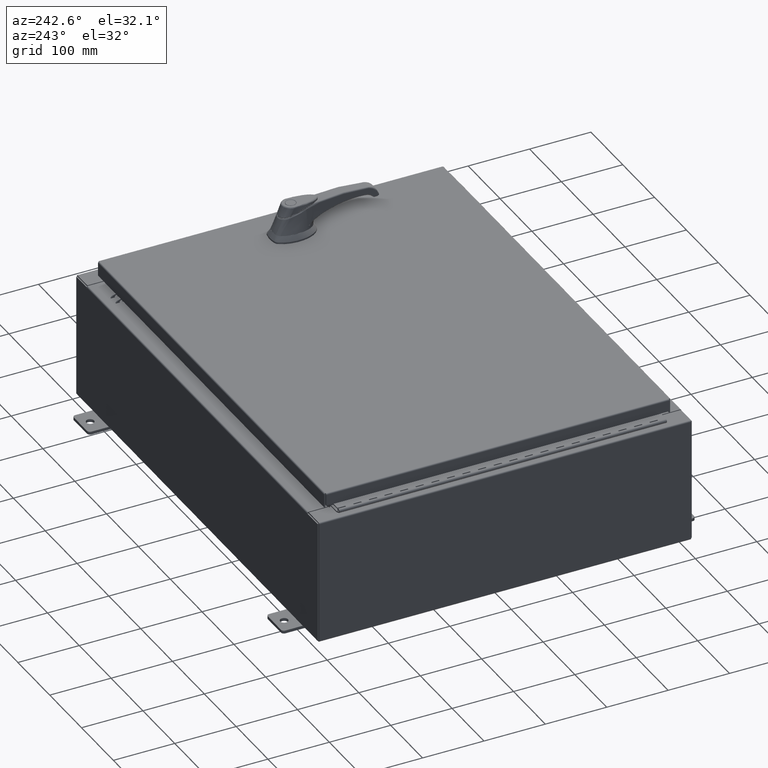
[diagram: clean part render]
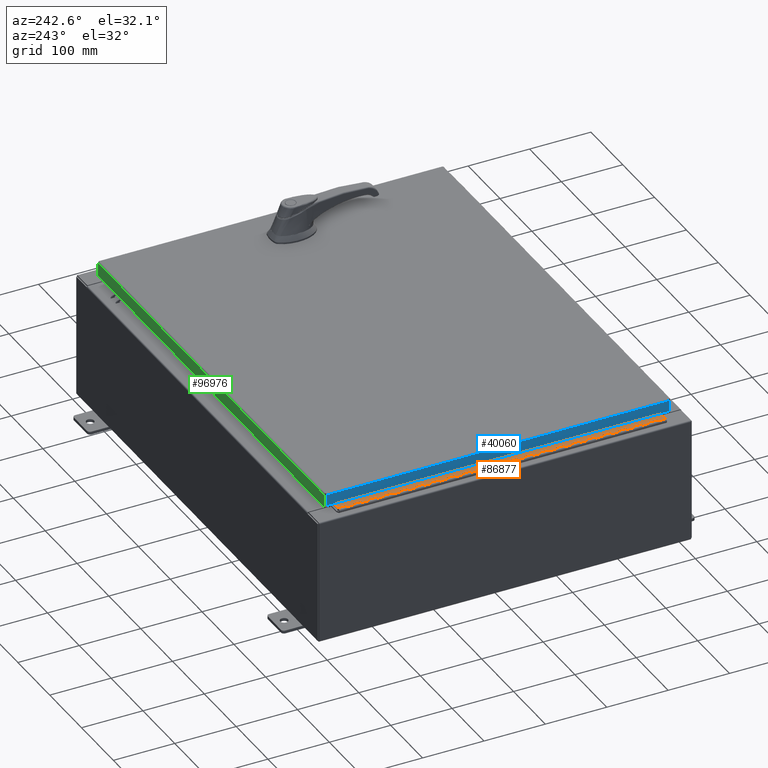
[diagram: same view with three faces highlighted in distinct colors, each labeled with its STEP entity id]
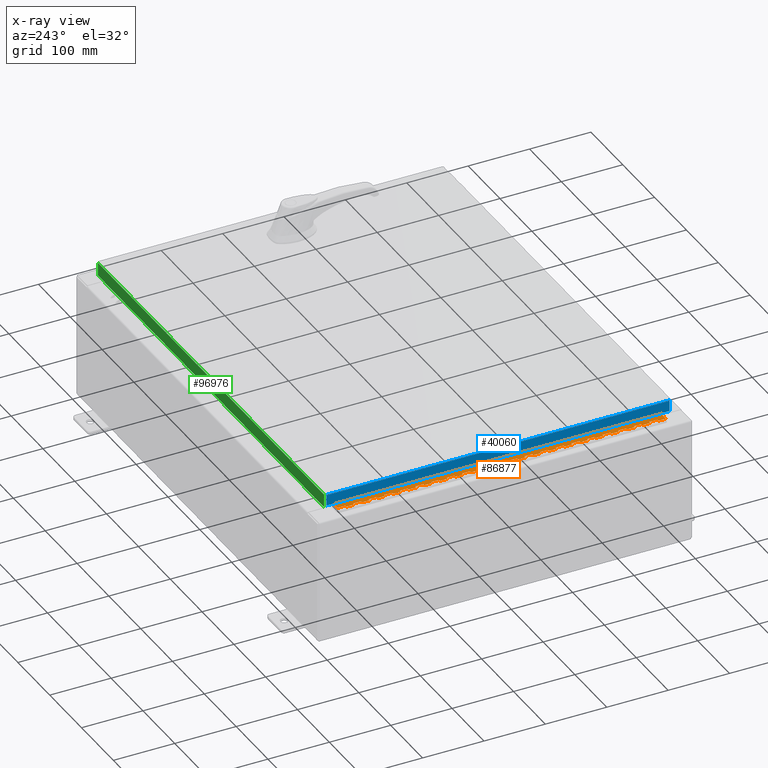
[diagram: x-ray of the same camera — body ghosted, the three highlighted faces saturated]
A machine part, auxiliary view with three faces highlighted in distinct colors.
The next image is the same camera in x-ray (body ghosted, the three faces saturated) — at least one of them is partly hidden behind the body in this view.
Their STEP definitions:

[orange] entity #86877 — the highlighted planar face has unit normal (-0, -0, 1).
#153 = VERTEX_POINT ( 'NONE', #78457 ) ;
#266 = VECTOR ( 'NONE', #71248, 39.37007874015748100 ) ;
#368 = VECTOR ( 'NONE', #106953, 39.37007874015748100 ) ;
#970 = CARTESIAN_POINT ( 'NONE',  ( -0.6869999999999982800, 0.5504999999999997700, -14.00000000000000000 ) ) ;
#1502 = VECTOR ( 'NONE', #34644, 39.37007874015748100 ) ;
#1560 = LINE ( 'NONE', #68880, #93807 ) ;
#1813 = EDGE_CURVE ( 'NONE', #80933, #80833, #9732, .T. ) ;
#2033 = VECTOR ( 'NONE', #4743, 39.37007874015748100 ) ;
#2072 = VECTOR ( 'NONE', #92872, 39.37007874015748100 ) ;
#2214 = VECTOR ( 'NONE', #51764, 39.37007874015748100 ) ;
#2448 = CARTESIAN_POINT ( 'NONE',  ( -0.6869999999999973900, 0.8004999999999995500, -8.500000000000000000 ) ) ;
#2631 = EDGE_CURVE ( 'NONE', #101813, #64301, #12202, .T. ) ;
#2693 = VERTEX_POINT ( 'NONE', #41476 ) ;
#2902 = DIRECTION ( 'NONE',  ( 3.369016658928398200E-015, 1.000000000000000000, 0.0000000000000000000 ) ) ;
#3046 = CARTESIAN_POINT ( 'NONE',  ( -0.6869999999999982800, 0.5504999999999997700, -19.00000000000000000 ) ) ;
#3056 = CARTESIAN_POINT ( 'NONE',  ( -0.6869999999999982800, 0.5504999999999997700, -4.500000000000000000 ) ) ;
#3602 = EDGE_CURVE ( 'NONE', #79508, #64301, #64919, .T. ) ;
#3739 = VERTEX_POINT ( 'NONE', #93168 ) ;
#3908 = DIRECTION ( 'NONE',  ( 3.389037039080723100E-015, 1.000000000000000000, -0.0000000000000000000 ) ) ;
#4082 = DIRECTION ( 'NONE',  ( -3.389037039080723100E-015, -1.000000000000000000, 0.0000000000000000000 ) ) ;
#4161 = VERTEX_POINT ( 'NONE', #101915 ) ;
#4177 = DIRECTION ( 'NONE',  ( -3.389037039080723100E-015, -1.000000000000000000, 0.0000000000000000000 ) ) ;
#4743 = DIRECTION ( 'NONE',  ( -3.389037039080723100E-015, -1.000000000000000000, 0.0000000000000000000 ) ) ;
#4808 = CARTESIAN_POINT ( 'NONE',  ( -0.6869999999999978300, 0.6754999999999996600, -6.499999999999999100 ) ) ;
#5276 = CARTESIAN_POINT ( 'NONE',  ( -0.6869999999999978300, 0.6754999999999996600, -7.499999999999999100 ) ) ;
#5305 = EDGE_CURVE ( 'NONE', #40744, #75524, #95917, .T. ) ;
#5393 = LINE ( 'NONE', #87129, #94876 ) ;
#5760 = LINE ( 'NONE', #79740, #49123 ) ;
#5987 = FACE_OUTER_BOUND ( 'NONE', #46040, .T. ) ;
#6041 = ORIENTED_EDGE ( 'NONE', *, *, #66712, .F. ) ;
#6342 = CARTESIAN_POINT ( 'NONE',  ( -0.6869999999999973900, 0.8004999999999995500, -7.499999999999999100 ) ) ;
#6546 = CARTESIAN_POINT ( 'NONE',  ( -0.6869999999999982800, 0.5504999999999997700, -6.499999999999999100 ) ) ;
#6639 = VECTOR ( 'NONE', #54943, 39.37007874015748100 ) ;
#6646 = EDGE_CURVE ( 'NONE', #67359, #56800, #18517, .T. ) ;
#6940 = EDGE_CURVE ( 'NONE', #104717, #14730, #25319, .T. ) ;
#7537 = AXIS2_PLACEMENT_3D ( 'NONE', #92044, #23112, #83703 ) ;
#7545 = VECTOR ( 'NONE', #56746, 39.37007874015748100 ) ;
#7666 = ORIENTED_EDGE ( 'NONE', *, *, #53913, .T. ) ;
#7761 = VERTEX_POINT ( 'NONE', #77459 ) ;
#8170 = LINE ( 'NONE', #112073, #97639 ) ;
#8277 = LINE ( 'NONE', #104812, #71984 ) ;
#9075 = VERTEX_POINT ( 'NONE', #9962 ) ;
#9100 = VECTOR ( 'NONE', #38766, 39.37007874015748100 ) ;
#9205 = VECTOR ( 'NONE', #52045, 39.37007874015748100 ) ;
#9474 = CARTESIAN_POINT ( 'NONE',  ( -0.6869999999999978300, 0.6754999999999996600, -19.00000000000000000 ) ) ;
#9479 = VECTOR ( 'NONE', #79998, 39.37007874015748100 ) ;
#9534 = CARTESIAN_POINT ( 'NONE',  ( -0.6869999999999973900, 0.8004999999999995500, -16.50000000000000000 ) ) ;
#9732 = LINE ( 'NONE', #39556, #35500 ) ;
#9962 = CARTESIAN_POINT ( 'NONE',  ( -0.6869999999999978300, 0.6754999999999996600, 0.0000000000000000000 ) ) ;
#10067 = VERTEX_POINT ( 'NONE', #15588 ) ;
#10081 = CARTESIAN_POINT ( 'NONE',  ( -0.6869999999999978300, 0.6754999999999996600, -8.000000000000000000 ) ) ;
#10213 = CARTESIAN_POINT ( 'NONE',  ( -0.6869999999999973900, 0.8004999999999995500, -5.000000000000000000 ) ) ;
#10244 = EDGE_CURVE ( 'NONE', #7761, #94252, #66937, .T. ) ;
#10457 = ORIENTED_EDGE ( 'NONE', *, *, #33374, .F. ) ;
#10596 = DIRECTION ( 'NONE',  ( 3.389037039080723100E-015, 1.000000000000000000, -0.0000000000000000000 ) ) ;
#11397 = CARTESIAN_POINT ( 'NONE',  ( -0.6869999999999982800, 0.5504999999999997700, -9.000000000000000000 ) ) ;
#11663 = ORIENTED_EDGE ( 'NONE', *, *, #61727, .F. ) ;
#11923 = LINE ( 'NONE', #111552, #9205 ) ;
#12202 = LINE ( 'NONE', #27387, #9479 ) ;
#12247 = ORIENTED_EDGE ( 'NONE', *, *, #98075, .T. ) ;
#12464 = ORIENTED_EDGE ( 'NONE', *, *, #97260, .F. ) ;
#12489 = DIRECTION ( 'NONE',  ( 0.0000000000000000000, 0.0000000000000000000, 1.000000000000000000 ) ) ;
#12494 = CARTESIAN_POINT ( 'NONE',  ( -0.6869999999999978300, 0.6754999999999996600, -1.000000000000000000 ) ) ;
#12510 = LINE ( 'NONE', #79919, #32897 ) ;
#12549 = DIRECTION ( 'NONE',  ( 0.0000000000000000000, -0.0000000000000000000, -1.000000000000000000 ) ) ;
#12822 = CARTESIAN_POINT ( 'NONE',  ( -0.6869999999999982800, 0.5504999999999997700, -13.50000000000000000 ) ) ;
#12842 = ORIENTED_EDGE ( 'NONE', *, *, #88620, .F. ) ;
#12953 = LINE ( 'NONE', #53607, #41430 ) ;
#13039 = CARTESIAN_POINT ( 'NONE',  ( -0.6869999999999982800, 0.5504999999999997700, -9.500000000000000000 ) ) ;
#13220 = VERTEX_POINT ( 'NONE', #67826 ) ;
#13924 = CARTESIAN_POINT ( 'NONE',  ( -0.6869999999999982800, 0.5504999999999997700, -4.000000000000000000 ) ) ;
#14231 = LINE ( 'NONE', #6342, #77953 ) ;
#14513 = ORIENTED_EDGE ( 'NONE', *, *, #51551, .F. ) ;
#14623 = EDGE_CURVE ( 'NONE', #10067, #72580, #93722, .T. ) ;
#14730 = VERTEX_POINT ( 'NONE', #111822 ) ;
#14781 = CARTESIAN_POINT ( 'NONE',  ( -0.6869999999999973900, 0.8004999999999995500, -0.5000000000000000000 ) ) ;
#15057 = DIRECTION ( 'NONE',  ( -3.389037039080723100E-015, -1.000000000000000000, 0.0000000000000000000 ) ) ;
#15122 = EDGE_CURVE ( 'NONE', #88867, #3739, #28604, .T. ) ;
#15264 = EDGE_CURVE ( 'NONE', #70760, #79508, #66517, .T. ) ;
#15310 = ORIENTED_EDGE ( 'NONE', *, *, #40482, .F. ) ;
#15346 = VECTOR ( 'NONE', #65526, 39.37007874015748100 ) ;
#15505 = CARTESIAN_POINT ( 'NONE',  ( -0.6869999999999982800, 0.5504999999999997700, -5.500000000000000000 ) ) ;
#15588 = CARTESIAN_POINT ( 'NONE',  ( -0.6869999999999978300, 0.6754999999999996600, -1.499999999999999800 ) ) ;
#15776 = LINE ( 'NONE', #34149, #82179 ) ;
#15792 = ORIENTED_EDGE ( 'NONE', *, *, #61919, .F. ) ;
#15832 = VECTOR ( 'NONE', #81776, 39.37007874015748100 ) ;
#15843 = CARTESIAN_POINT ( 'NONE',  ( -0.6869999999999978300, 0.6754999999999996600, -21.00000000000000000 ) ) ;
#15963 = ORIENTED_EDGE ( 'NONE', *, *, #5305, .F. ) ;
#16587 = EDGE_CURVE ( 'NONE', #37537, #34533, #8277, .T. ) ;
#16972 = DIRECTION ( 'NONE',  ( 0.0000000000000000000, 0.0000000000000000000, 1.000000000000000000 ) ) ;
#16974 = DIRECTION ( 'NONE',  ( 0.0000000000000000000, 0.0000000000000000000, 1.000000000000000000 ) ) ;
#17052 = VECTOR ( 'NONE', #58279, 39.37007874015748100 ) ;
#17108 = CARTESIAN_POINT ( 'NONE',  ( -0.6869999999999982800, 0.5504999999999997700, -10.00000000000000000 ) ) ;
#17254 = VERTEX_POINT ( 'NONE', #3056 ) ;
#17446 = ORIENTED_EDGE ( 'NONE', *, *, #21738, .T. ) ;
#17540 = CARTESIAN_POINT ( 'NONE',  ( -0.6869999999999978300, 0.6754999999999996600, -18.50000000000000000 ) ) ;
#17580 = VECTOR ( 'NONE', #93557, 39.37007874015748100 ) ;
#17597 = EDGE_CURVE ( 'NONE', #91715, #111342, #8170, .T. ) ;
#17794 = LINE ( 'NONE', #75964, #84251 ) ;
#17869 = VERTEX_POINT ( 'NONE', #99149 ) ;
#18050 = LINE ( 'NONE', #56798, #15346 ) ;
#18068 = VECTOR ( 'NONE', #28379, 39.37007874015748100 ) ;
#18169 = VECTOR ( 'NONE', #86818, 39.37007874015748100 ) ;
#18268 = ORIENTED_EDGE ( 'NONE', *, *, #6646, .F. ) ;
#18384 = DIRECTION ( 'NONE',  ( 0.0000000000000000000, 0.0000000000000000000, 1.000000000000000000 ) ) ;
#18393 = EDGE_CURVE ( 'NONE', #46862, #59871, #105681, .T. ) ;
#18396 = EDGE_CURVE ( 'NONE', #76349, #13220, #79926, .T. ) ;
#18517 = LINE ( 'NONE', #46902, #15832 ) ;
#18568 = ORIENTED_EDGE ( 'NONE', *, *, #1813, .F. ) ;
#18585 = CARTESIAN_POINT ( 'NONE',  ( -0.6869999999999973900, 0.8004999999999995500, -9.000000000000000000 ) ) ;
#18684 = VECTOR ( 'NONE', #41155, 39.37007874015748100 ) ;
#19516 = VECTOR ( 'NONE', #95066, 39.37007874015748100 ) ;
#19843 = ORIENTED_EDGE ( 'NONE', *, *, #69047, .F. ) ;
#20110 = VECTOR ( 'NONE', #18384, 39.37007874015748100 ) ;
#20422 = VECTOR ( 'NONE', #30063, 39.37007874015748100 ) ;
#20583 = LINE ( 'NONE', #45178, #63917 ) ;
#20964 = VECTOR ( 'NONE', #79789, 39.37007874015748100 ) ;
#21031 = LINE ( 'NONE', #21176, #41323 ) ;
#21104 = DIRECTION ( 'NONE',  ( 0.0000000000000000000, -0.0000000000000000000, -1.000000000000000000 ) ) ;
#21176 = CARTESIAN_POINT ( 'NONE',  ( -0.6869999999999973900, 0.8004999999999995500, -19.50000000000000000 ) ) ;
#21200 = CARTESIAN_POINT ( 'NONE',  ( -0.6869999999999982800, 0.5504999999999997700, -12.99999999999999800 ) ) ;
#21249 = CARTESIAN_POINT ( 'NONE',  ( -0.6869999999999978300, 0.6754999999999996600, -21.00000000000000000 ) ) ;
#21349 = DIRECTION ( 'NONE',  ( 0.0000000000000000000, 0.0000000000000000000, 1.000000000000000000 ) ) ;
#21409 = LINE ( 'NONE', #15843, #62018 ) ;
#21533 = LINE ( 'NONE', #89279, #67624 ) ;
#21738 = EDGE_CURVE ( 'NONE', #37537, #71386, #26687, .T. ) ;
#21829 = CARTESIAN_POINT ( 'NONE',  ( -0.6869999999999982800, 0.5504999999999997700, -6.000000000000000900 ) ) ;
#21929 = VECTOR ( 'NONE', #16972, 39.37007874015748100 ) ;
#21936 = CARTESIAN_POINT ( 'NONE',  ( -0.6869999999999978300, 0.6754999999999996600, -21.00000000000000000 ) ) ;
#22222 = LINE ( 'NONE', #100789, #42501 ) ;
#22239 = EDGE_CURVE ( 'NONE', #34533, #89076, #60465, .T. ) ;
#22254 = LINE ( 'NONE', #76820, #19516 ) ;
#22283 = CARTESIAN_POINT ( 'NONE',  ( -0.6869999999999982800, 0.5504999999999997700, -1.000000000000000000 ) ) ;
#22497 = CARTESIAN_POINT ( 'NONE',  ( -0.6869999999999982800, 0.5504999999999997700, -17.50000000000000000 ) ) ;
#22576 = DIRECTION ( 'NONE',  ( 0.0000000000000000000, 0.0000000000000000000, 1.000000000000000000 ) ) ;
#23012 = CARTESIAN_POINT ( 'NONE',  ( -0.6869999999999978300, 0.6754999999999996600, -11.50000000000000000 ) ) ;
#23112 = DIRECTION ( 'NONE',  ( 1.000000000000000000, -3.369016658928398200E-015, 0.0000000000000000000 ) ) ;
#23192 = VERTEX_POINT ( 'NONE', #39453 ) ;
#23591 = ORIENTED_EDGE ( 'NONE', *, *, #27555, .F. ) ;
#23852 = ORIENTED_EDGE ( 'NONE', *, *, #110169, .F. ) ;
#24109 = EDGE_CURVE ( 'NONE', #34640, #94252, #53619, .T. ) ;
#24228 = CARTESIAN_POINT ( 'NONE',  ( -0.6869999999999978300, 0.6754999999999996600, -21.00000000000000000 ) ) ;
#24349 = LINE ( 'NONE', #14781, #88008 ) ;
#24463 = VECTOR ( 'NONE', #12489, 39.37007874015748100 ) ;
#24498 = VECTOR ( 'NONE', #81193, 39.37007874015748100 ) ;
#24584 = VECTOR ( 'NONE', #109974, 39.37007874015748100 ) ;
#24602 = VERTEX_POINT ( 'NONE', #52848 ) ;
#24608 = LINE ( 'NONE', #51668, #1502 ) ;
#24963 = LINE ( 'NONE', #101168, #108930 ) ;
#25068 = LINE ( 'NONE', #84784, #91452 ) ;
#25145 = LINE ( 'NONE', #108531, #2033 ) ;
#25168 = ORIENTED_EDGE ( 'NONE', *, *, #45577, .F. ) ;
#25319 = LINE ( 'NONE', #103708, #2214 ) ;
#26067 = EDGE_CURVE ( 'NONE', #52509, #110070, #22254, .T. ) ;
#26231 = CARTESIAN_POINT ( 'NONE',  ( -0.6869999999999973900, 0.8004999999999995500, -14.49999999999999800 ) ) ;
#26413 = ORIENTED_EDGE ( 'NONE', *, *, #70543, .T. ) ;
#26433 = CARTESIAN_POINT ( 'NONE',  ( -0.6869999999999978300, 0.6754999999999996600, -21.00000000000000000 ) ) ;
#26519 = ORIENTED_EDGE ( 'NONE', *, *, #15122, .F. ) ;
#26521 = CARTESIAN_POINT ( 'NONE',  ( -0.6869999999999998300, 0.07549999999999991400, 0.0000000000000000000 ) ) ;
#26687 = LINE ( 'NONE', #109391, #64576 ) ;
#26752 = LINE ( 'NONE', #77965, #110756 ) ;
#27009 = DIRECTION ( 'NONE',  ( -3.389037039080723100E-015, -1.000000000000000000, 0.0000000000000000000 ) ) ;
#27098 = EDGE_CURVE ( 'NONE', #23192, #94740, #60068, .T. ) ;
#27197 = LINE ( 'NONE', #72487, #24498 ) ;
#27320 = CARTESIAN_POINT ( 'NONE',  ( -0.6869999999999978300, 0.6754999999999996600, -10.00000000000000000 ) ) ;
#27328 = DIRECTION ( 'NONE',  ( 3.389037039080723100E-015, 1.000000000000000000, -0.0000000000000000000 ) ) ;
#27387 = CARTESIAN_POINT ( 'NONE',  ( -0.6870000000000022800, -0.6245000000000003900, -21.00000000000000000 ) ) ;
#27497 = ORIENTED_EDGE ( 'NONE', *, *, #95279, .F. ) ;
#27555 = EDGE_CURVE ( 'NONE', #13220, #104569, #66827, .T. ) ;
#27821 = ORIENTED_EDGE ( 'NONE', *, *, #31397, .F. ) ;
#28258 = EDGE_CURVE ( 'NONE', #86813, #73755, #47427, .T. ) ;
#28379 = DIRECTION ( 'NONE',  ( 0.0000000000000000000, -0.0000000000000000000, -1.000000000000000000 ) ) ;
#28414 = VECTOR ( 'NONE', #58444, 39.37007874015748100 ) ;
#28604 = LINE ( 'NONE', #89501, #48867 ) ;
#29225 = ORIENTED_EDGE ( 'NONE', *, *, #32074, .F. ) ;
#29267 = ORIENTED_EDGE ( 'NONE', *, *, #94759, .F. ) ;
#29463 = VERTEX_POINT ( 'NONE', #10081 ) ;
#29591 = LINE ( 'NONE', #55962, #49877 ) ;
#29702 = LINE ( 'NONE', #89443, #6639 ) ;
#29867 = DIRECTION ( 'NONE',  ( 0.0000000000000000000, -0.0000000000000000000, -1.000000000000000000 ) ) ;
#29874 = CARTESIAN_POINT ( 'NONE',  ( -0.6869999999999982800, 0.5504999999999997700, -21.00000000000000000 ) ) ;
#29989 = VECTOR ( 'NONE', #104161, 39.37007874015748100 ) ;
#30063 = DIRECTION ( 'NONE',  ( -3.389037039080723100E-015, -1.000000000000000000, 0.0000000000000000000 ) ) ;
#30534 = LINE ( 'NONE', #105298, #73906 ) ;
#30733 = VERTEX_POINT ( 'NONE', #37793 ) ;
#31008 = VECTOR ( 'NONE', #53697, 39.37007874015748100 ) ;
#31116 = LINE ( 'NONE', #6546, #28414 ) ;
#31160 = VERTEX_POINT ( 'NONE', #15505 ) ;
#31397 = EDGE_CURVE ( 'NONE', #102824, #82140, #21533, .T. ) ;
#32074 = EDGE_CURVE ( 'NONE', #76294, #62567, #11923, .T. ) ;
#32241 = CARTESIAN_POINT ( 'NONE',  ( -0.6869999999999973900, 0.8004999999999995500, -12.49999999999999800 ) ) ;
#32460 = CARTESIAN_POINT ( 'NONE',  ( -0.6869999999999982800, 0.5504999999999997700, -20.00000000000000000 ) ) ;
#32467 = VERTEX_POINT ( 'NONE', #66016 ) ;
#32878 = DIRECTION ( 'NONE',  ( 0.0000000000000000000, 0.0000000000000000000, 1.000000000000000000 ) ) ;
#32897 = VECTOR ( 'NONE', #80274, 39.37007874015748100 ) ;
#33332 = VERTEX_POINT ( 'NONE', #103368 ) ;
#33374 = EDGE_CURVE ( 'NONE', #78840, #40744, #26752, .T. ) ;
#33458 = ORIENTED_EDGE ( 'NONE', *, *, #61897, .F. ) ;
#33718 = LINE ( 'NONE', #69309, #53990 ) ;
#34149 = CARTESIAN_POINT ( 'NONE',  ( -0.6869999999999982800, 0.5504999999999997700, -8.500000000000000000 ) ) ;
#34533 = VERTEX_POINT ( 'NONE', #83513 ) ;
#34634 = ORIENTED_EDGE ( 'NONE', *, *, #6940, .F. ) ;
#34640 = VERTEX_POINT ( 'NONE', #101323 ) ;
#34644 = DIRECTION ( 'NONE',  ( -3.389037039080723100E-015, -1.000000000000000000, 0.0000000000000000000 ) ) ;
#34786 = VERTEX_POINT ( 'NONE', #17540 ) ;
#34831 = CARTESIAN_POINT ( 'NONE',  ( -0.6869999999999978300, 0.6754999999999996600, -21.00000000000000000 ) ) ;
#34870 = LINE ( 'NONE', #64913, #9100 ) ;
#34888 = CARTESIAN_POINT ( 'NONE',  ( -0.6869999999999978300, 0.6754999999999996600, -11.00000000000000000 ) ) ;
#34931 = ORIENTED_EDGE ( 'NONE', *, *, #108011, .F. ) ;
#35223 = DIRECTION ( 'NONE',  ( 0.0000000000000000000, 0.0000000000000000000, 1.000000000000000000 ) ) ;
#35404 = ORIENTED_EDGE ( 'NONE', *, *, #53575, .F. ) ;
#35500 = VECTOR ( 'NONE', #12549, 39.37007874015748100 ) ;
#35527 = ORIENTED_EDGE ( 'NONE', *, *, #104674, .T. ) ;
#35699 = DIRECTION ( 'NONE',  ( -3.389037039080723100E-015, -1.000000000000000000, 0.0000000000000000000 ) ) ;
#35866 = VERTEX_POINT ( 'NONE', #87005 ) ;
#36219 = CARTESIAN_POINT ( 'NONE',  ( -0.6869999999999982800, 0.5504999999999997700, -15.50000000000000000 ) ) ;
#36308 = CARTESIAN_POINT ( 'NONE',  ( -0.6869999999999973900, 0.8004999999999995500, -6.000000000000000900 ) ) ;
#36310 = CARTESIAN_POINT ( 'NONE',  ( -0.6869999999999973900, 0.8004999999999995500, -18.50000000000000000 ) ) ;
#36328 = LINE ( 'NONE', #69886, #102778 ) ;
#36382 = CARTESIAN_POINT ( 'NONE',  ( -0.6869999999999973900, 0.8004999999999995500, -5.500000000000000000 ) ) ;
#36775 = VERTEX_POINT ( 'NONE', #39801 ) ;
#37537 = VERTEX_POINT ( 'NONE', #23012 ) ;
#37763 = DIRECTION ( 'NONE',  ( -3.389037039080723100E-015, -1.000000000000000000, 0.0000000000000000000 ) ) ;
#37793 = CARTESIAN_POINT ( 'NONE',  ( -0.6869999999999982800, 0.5504999999999997700, -6.499999999999999100 ) ) ;
#38243 = ORIENTED_EDGE ( 'NONE', *, *, #10244, .F. ) ;
#38722 = VERTEX_POINT ( 'NONE', #81367 ) ;
#38766 = DIRECTION ( 'NONE',  ( 3.389037039080723100E-015, 1.000000000000000000, -0.0000000000000000000 ) ) ;
#38860 = VERTEX_POINT ( 'NONE', #22283 ) ;
#39321 = CARTESIAN_POINT ( 'NONE',  ( -0.6869999999999982800, 0.5504999999999997700, -17.50000000000000000 ) ) ;
#39453 = CARTESIAN_POINT ( 'NONE',  ( -0.6869999999999978300, 0.6754999999999996600, -2.500000000000000000 ) ) ;
#39468 = DIRECTION ( 'NONE',  ( 0.0000000000000000000, 0.0000000000000000000, 1.000000000000000000 ) ) ;
#39556 = CARTESIAN_POINT ( 'NONE',  ( -0.6869999999999982800, 0.5504999999999997700, -19.50000000000000000 ) ) ;
#39801 = CARTESIAN_POINT ( 'NONE',  ( -0.6869999999999978300, 0.6754999999999996600, -2.999999999999999600 ) ) ;
#40121 = EDGE_CURVE ( 'NONE', #32467, #17254, #24608, .T. ) ;
#40156 = ORIENTED_EDGE ( 'NONE', *, *, #27098, .F. ) ;
#40323 = EDGE_CURVE ( 'NONE', #17869, #76294, #82847, .T. ) ;
#40482 = EDGE_CURVE ( 'NONE', #89076, #62376, #92323, .T. ) ;
#40744 = VERTEX_POINT ( 'NONE', #3046 ) ;
#41019 = CARTESIAN_POINT ( 'NONE',  ( -0.6869999999999973900, 0.8004999999999995500, -3.500000000000000000 ) ) ;
#41021 = ORIENTED_EDGE ( 'NONE', *, *, #14623, .T. ) ;
#41155 = DIRECTION ( 'NONE',  ( 0.0000000000000000000, -0.0000000000000000000, -1.000000000000000000 ) ) ;
#41163 = ORIENTED_EDGE ( 'NONE', *, *, #44253, .T. ) ;
#41323 = VECTOR ( 'NONE', #4082, 39.37007874015748100 ) ;
#41430 = VECTOR ( 'NONE', #105531, 39.37007874015748100 ) ;
#41476 = CARTESIAN_POINT ( 'NONE',  ( -0.6869999999999982800, 0.5504999999999997700, -17.00000000000000000 ) ) ;
#41941 = DIRECTION ( 'NONE',  ( 3.389037039080723100E-015, 1.000000000000000000, -0.0000000000000000000 ) ) ;
#41986 = EDGE_CURVE ( 'NONE', #104996, #110070, #27197, .T. ) ;
#42270 = VERTEX_POINT ( 'NONE', #110329 ) ;
#42419 = VERTEX_POINT ( 'NONE', #17108 ) ;
#42501 = VECTOR ( 'NONE', #92094, 39.37007874015748100 ) ;
#42823 = DIRECTION ( 'NONE',  ( 0.0000000000000000000, -0.0000000000000000000, -1.000000000000000000 ) ) ;
#43088 = VECTOR ( 'NONE', #102257, 39.37007874015748100 ) ;
#43089 = VERTEX_POINT ( 'NONE', #92338 ) ;
#43105 = VERTEX_POINT ( 'NONE', #57824 ) ;
#43115 = LINE ( 'NONE', #82492, #109567 ) ;
#43121 = LINE ( 'NONE', #52448, #20110 ) ;
#43256 = EDGE_CURVE ( 'NONE', #30733, #38722, #31116, .T. ) ;
#43262 = EDGE_CURVE ( 'NONE', #42419, #97514, #51400, .T. ) ;
#43423 = DIRECTION ( 'NONE',  ( -3.389037039080723100E-015, -1.000000000000000000, 0.0000000000000000000 ) ) ;
#43542 = ORIENTED_EDGE ( 'NONE', *, *, #16587, .F. ) ;
#43945 = ORIENTED_EDGE ( 'NONE', *, *, #88299, .F. ) ;
#44253 = EDGE_CURVE ( 'NONE', #75563, #59871, #43121, .T. ) ;
#44284 = LINE ( 'NONE', #41019, #87712 ) ;
#44406 = VECTOR ( 'NONE', #43423, 39.37007874015748100 ) ;
#44417 = EDGE_CURVE ( 'NONE', #24602, #97618, #104135, .T. ) ;
#44911 = LINE ( 'NONE', #102617, #21929 ) ;
#44932 = ORIENTED_EDGE ( 'NONE', *, *, #58566, .T. ) ;
#45071 = LINE ( 'NONE', #36310, #111519 ) ;
#45178 = CARTESIAN_POINT ( 'NONE',  ( -0.6869999999999973900, 0.8004999999999995500, -2.999999999999999600 ) ) ;
#45181 = CARTESIAN_POINT ( 'NONE',  ( -0.6869999999999973900, 0.8004999999999995500, -10.50000000000000000 ) ) ;
#45577 = EDGE_CURVE ( 'NONE', #33332, #104717, #49786, .T. ) ;
#46040 = EDGE_LOOP ( 'NONE', ( #96865, #69304, #66057, #104077, #64669, #98488, #18568, #58158, #7666, #15963, #10457, #43945, #87364, #23591, #46102, #19843, #78216, #15792, #23852, #61824, #101446, #48190, #33458, #50139, #41163, #104191, #88389, #109731, #63097, #11663, #84853, #18268, #102415, #95864, #27821, #56358, #69266, #15310, #98653, #43542, #17446, #107757, #29225, #58933, #107610, #81941, #73693, #26519, #96946, #56965, #12464, #75531, #53233, #34931, #84668, #6041, #92606, #12842, #102203, #27497, #26413, #29267, #14513, #35404, #78119, #38243, #52407, #61465, #51981, #51776, #58835, #79031, #44932, #95416, #75238, #40156, #12247, #34634, #25168, #55013, #41021, #54591, #97787, #58734, #35527, #82446 ) ) ;
#46072 = CARTESIAN_POINT ( 'NONE',  ( -0.6870000000000022800, -0.6245000000000003900, 0.0000000000000000000 ) ) ;
#46102 = ORIENTED_EDGE ( 'NONE', *, *, #18396, .F. ) ;
#46322 = LINE ( 'NONE', #36382, #266 ) ;
#46659 = VECTOR ( 'NONE', #88122, 39.37007874015748100 ) ;
#46662 = CARTESIAN_POINT ( 'NONE',  ( -0.6869999999999973900, 0.8004999999999995500, -11.99999999999999800 ) ) ;
#46862 = VERTEX_POINT ( 'NONE', #78311 ) ;
#46902 = CARTESIAN_POINT ( 'NONE',  ( -0.6869999999999973900, 0.8004999999999995500, -13.50000000000000000 ) ) ;
#47032 = VECTOR ( 'NONE', #106927, 39.37007874015748100 ) ;
#47238 = DIRECTION ( 'NONE',  ( 0.0000000000000000000, -0.0000000000000000000, -1.000000000000000000 ) ) ;
#47352 = CARTESIAN_POINT ( 'NONE',  ( -0.6869999999999973900, 0.8004999999999995500, -2.500000000000000000 ) ) ;
#47427 = LINE ( 'NONE', #21249, #24463 ) ;
#47560 = EDGE_CURVE ( 'NONE', #101813, #111243, #105116, .T. ) ;
#47817 = CARTESIAN_POINT ( 'NONE',  ( -0.6869999999999982800, 0.5504999999999997700, -3.500000000000000000 ) ) ;
#48153 = LINE ( 'NONE', #32241, #2072 ) ;
#48190 = ORIENTED_EDGE ( 'NONE', *, *, #26067, .F. ) ;
#48424 = CARTESIAN_POINT ( 'NONE',  ( -0.6869999999999982800, 0.5504999999999997700, -20.50000000000000400 ) ) ;
#48867 = VECTOR ( 'NONE', #35699, 39.37007874015748100 ) ;
#48893 = EDGE_CURVE ( 'NONE', #34786, #104569, #12953, .T. ) ;
#48943 = VERTEX_POINT ( 'NONE', #64990 ) ;
#49020 = VECTOR ( 'NONE', #39468, 39.37007874015748100 ) ;
#49123 = VECTOR ( 'NONE', #88457, 39.37007874015748100 ) ;
#49617 = EDGE_CURVE ( 'NONE', #111727, #80933, #21031, .T. ) ;
#49786 = LINE ( 'NONE', #98237, #47032 ) ;
#49791 = DIRECTION ( 'NONE',  ( 0.0000000000000000000, -0.0000000000000000000, -1.000000000000000000 ) ) ;
#49826 = VECTOR ( 'NONE', #75136, 39.37007874015748100 ) ;
#49877 = VECTOR ( 'NONE', #47238, 39.37007874015748100 ) ;
#49938 = CARTESIAN_POINT ( 'NONE',  ( -0.6869999999999982800, 0.5504999999999997700, -18.50000000000000000 ) ) ;
#49974 = EDGE_CURVE ( 'NONE', #35866, #62376, #25068, .T. ) ;
#50139 = ORIENTED_EDGE ( 'NONE', *, *, #79184, .F. ) ;
#50333 = CARTESIAN_POINT ( 'NONE',  ( -0.6869999999999973900, 0.8004999999999995500, -8.000000000000000000 ) ) ;
#50659 = DIRECTION ( 'NONE',  ( 0.0000000000000000000, 0.0000000000000000000, 1.000000000000000000 ) ) ;
#51079 = EDGE_CURVE ( 'NONE', #83213, #43105, #22222, .T. ) ;
#51082 = EDGE_CURVE ( 'NONE', #62567, #71386, #24963, .T. ) ;
#51186 = CARTESIAN_POINT ( 'NONE',  ( -0.6869999999999982800, 0.5504999999999997700, -16.50000000000000000 ) ) ;
#51200 = VECTOR ( 'NONE', #21349, 39.37007874015748100 ) ;
#51209 = CARTESIAN_POINT ( 'NONE',  ( -0.6869999999999982800, 0.5504999999999997700, -11.99999999999999800 ) ) ;
#51400 = LINE ( 'NONE', #110719, #71758 ) ;
#51460 = VERTEX_POINT ( 'NONE', #70802 ) ;
#51551 = EDGE_CURVE ( 'NONE', #31160, #54476, #110270, .T. ) ;
#51668 = CARTESIAN_POINT ( 'NONE',  ( -0.6869999999999973900, 0.8004999999999995500, -4.500000000000000000 ) ) ;
#51754 = VERTEX_POINT ( 'NONE', #970 ) ;
#51764 = DIRECTION ( 'NONE',  ( 3.389037039080723100E-015, 1.000000000000000000, -0.0000000000000000000 ) ) ;
#51776 = ORIENTED_EDGE ( 'NONE', *, *, #110712, .F. ) ;
#51981 = ORIENTED_EDGE ( 'NONE', *, *, #75023, .T. ) ;
#52045 = DIRECTION ( 'NONE',  ( 0.0000000000000000000, -0.0000000000000000000, -1.000000000000000000 ) ) ;
#52106 = LINE ( 'NONE', #36219, #46659 ) ;
#52407 = ORIENTED_EDGE ( 'NONE', *, *, #61393, .F. ) ;
#52425 = EDGE_CURVE ( 'NONE', #88867, #102266, #12510, .T. ) ;
#52448 = CARTESIAN_POINT ( 'NONE',  ( -0.6869999999999978300, 0.6754999999999996600, -21.00000000000000000 ) ) ;
#52509 = VERTEX_POINT ( 'NONE', #97715 ) ;
#52714 = CARTESIAN_POINT ( 'NONE',  ( -0.6869999999999982800, 0.5504999999999997700, -11.00000000000000000 ) ) ;
#52848 = CARTESIAN_POINT ( 'NONE',  ( -0.6869999999999978300, 0.6754999999999996600, -8.500000000000000000 ) ) ;
#52875 = DIRECTION ( 'NONE',  ( -3.389037039080723100E-015, -1.000000000000000000, 0.0000000000000000000 ) ) ;
#53233 = ORIENTED_EDGE ( 'NONE', *, *, #78842, .T. ) ;
#53575 = EDGE_CURVE ( 'NONE', #34640, #31160, #46322, .T. ) ;
#53607 = CARTESIAN_POINT ( 'NONE',  ( -0.6869999999999978300, 0.6754999999999996600, -21.00000000000000000 ) ) ;
#53619 = LINE ( 'NONE', #21936, #7545 ) ;
#53697 = DIRECTION ( 'NONE',  ( 3.389037039080723100E-015, 1.000000000000000000, -0.0000000000000000000 ) ) ;
#53897 = DIRECTION ( 'NONE',  ( 3.389037039080723100E-015, 1.000000000000000000, -0.0000000000000000000 ) ) ;
#53904 = EDGE_CURVE ( 'NONE', #70760, #48943, #1560, .T. ) ;
#53913 = EDGE_CURVE ( 'NONE', #111727, #75524, #44911, .T. ) ;
#53990 = VECTOR ( 'NONE', #59094, 39.37007874015748100 ) ;
#54476 = VERTEX_POINT ( 'NONE', #21829 ) ;
#54591 = ORIENTED_EDGE ( 'NONE', *, *, #74855, .F. ) ;
#54780 = DIRECTION ( 'NONE',  ( 0.0000000000000000000, -0.0000000000000000000, -1.000000000000000000 ) ) ;
#54825 = VECTOR ( 'NONE', #41941, 39.37007874015748100 ) ;
#54941 = CARTESIAN_POINT ( 'NONE',  ( -0.6869999999999982800, 0.5504999999999997700, -14.49999999999999800 ) ) ;
#54943 = DIRECTION ( 'NONE',  ( 3.389037039080723100E-015, 1.000000000000000000, -0.0000000000000000000 ) ) ;
#55006 = DIRECTION ( 'NONE',  ( 3.389037039080723100E-015, 1.000000000000000000, -0.0000000000000000000 ) ) ;
#55013 = ORIENTED_EDGE ( 'NONE', *, *, #85486, .F. ) ;
#55130 = CARTESIAN_POINT ( 'NONE',  ( -0.6869999999999982800, 0.5504999999999997700, -11.50000000000000000 ) ) ;
#55392 = CARTESIAN_POINT ( 'NONE',  ( -0.6869999999999982800, 0.5504999999999997700, -2.999999999999999600 ) ) ;
#55793 = CARTESIAN_POINT ( 'NONE',  ( -0.6869999999999973900, 0.8004999999999995500, -14.99999999999999800 ) ) ;
#55962 = CARTESIAN_POINT ( 'NONE',  ( -0.6869999999999982800, 0.5504999999999997700, -14.49999999999999800 ) ) ;
#56358 = ORIENTED_EDGE ( 'NONE', *, *, #99721, .F. ) ;
#56374 = EDGE_CURVE ( 'NONE', #104996, #71266, #66384, .T. ) ;
#56559 = VERTEX_POINT ( 'NONE', #54941 ) ;
#56589 = DIRECTION ( 'NONE',  ( 0.0000000000000000000, -0.0000000000000000000, -1.000000000000000000 ) ) ;
#56710 = EDGE_CURVE ( 'NONE', #71508, #153, #24349, .T. ) ;
#56746 = DIRECTION ( 'NONE',  ( 0.0000000000000000000, 0.0000000000000000000, 1.000000000000000000 ) ) ;
#56798 = CARTESIAN_POINT ( 'NONE',  ( -0.6869999999999973900, 0.8004999999999995500, -17.50000000000000000 ) ) ;
#56800 = VERTEX_POINT ( 'NONE', #12822 ) ;
#56917 = DIRECTION ( 'NONE',  ( 0.0000000000000000000, -0.0000000000000000000, -1.000000000000000000 ) ) ;
#56965 = ORIENTED_EDGE ( 'NONE', *, *, #78462, .F. ) ;
#57004 = CARTESIAN_POINT ( 'NONE',  ( -0.6869999999999978300, 0.6754999999999996600, -21.00000000000000000 ) ) ;
#57279 = LINE ( 'NONE', #46072, #100679 ) ;
#57534 = CARTESIAN_POINT ( 'NONE',  ( -0.6869999999999978300, 0.6754999999999996600, -17.50000000000000000 ) ) ;
#57824 = CARTESIAN_POINT ( 'NONE',  ( -0.6869999999999978300, 0.6754999999999996600, -14.00000000000000000 ) ) ;
#58158 = ORIENTED_EDGE ( 'NONE', *, *, #49617, .F. ) ;
#58279 = DIRECTION ( 'NONE',  ( 0.0000000000000000000, 0.0000000000000000000, 1.000000000000000000 ) ) ;
#58444 = DIRECTION ( 'NONE',  ( 0.0000000000000000000, -0.0000000000000000000, -1.000000000000000000 ) ) ;
#58566 = EDGE_CURVE ( 'NONE', #51460, #36775, #21409, .T. ) ;
#58734 = ORIENTED_EDGE ( 'NONE', *, *, #56710, .F. ) ;
#58835 = ORIENTED_EDGE ( 'NONE', *, *, #81297, .F. ) ;
#58933 = ORIENTED_EDGE ( 'NONE', *, *, #40323, .F. ) ;
#59094 = DIRECTION ( 'NONE',  ( 3.389037039080723100E-015, 1.000000000000000000, -0.0000000000000000000 ) ) ;
#59606 = VECTOR ( 'NONE', #3908, 39.37007874015748100 ) ;
#59871 = VERTEX_POINT ( 'NONE', #61994 ) ;
#60068 = LINE ( 'NONE', #47352, #80379 ) ;
#60465 = LINE ( 'NONE', #55130, #103848 ) ;
#60475 = LINE ( 'NONE', #18585, #83535 ) ;
#60562 = LINE ( 'NONE', #26433, #83634 ) ;
#61212 = CARTESIAN_POINT ( 'NONE',  ( -0.6869999999999982800, 0.5504999999999997700, -7.499999999999999100 ) ) ;
#61393 = EDGE_CURVE ( 'NONE', #17254, #7761, #30534, .T. ) ;
#61465 = ORIENTED_EDGE ( 'NONE', *, *, #40121, .F. ) ;
#61705 = CARTESIAN_POINT ( 'NONE',  ( -0.6869999999999982800, 0.5504999999999997700, -8.000000000000000000 ) ) ;
#61727 = EDGE_CURVE ( 'NONE', #51754, #43105, #103689, .T. ) ;
#61824 = ORIENTED_EDGE ( 'NONE', *, *, #56374, .F. ) ;
#61897 = EDGE_CURVE ( 'NONE', #4161, #52509, #52106, .T. ) ;
#61919 = EDGE_CURVE ( 'NONE', #2693, #73755, #92850, .T. ) ;
#61994 = CARTESIAN_POINT ( 'NONE',  ( -0.6869999999999978300, 0.6754999999999996600, -14.99999999999999800 ) ) ;
#62018 = VECTOR ( 'NONE', #50659, 39.37007874015748100 ) ;
#62059 = CARTESIAN_POINT ( 'NONE',  ( -0.6869999999999982800, 0.5504999999999997700, -2.500000000000000000 ) ) ;
#62298 = VECTOR ( 'NONE', #83089, 39.37007874015748100 ) ;
#62376 = VERTEX_POINT ( 'NONE', #93757 ) ;
#62567 = VERTEX_POINT ( 'NONE', #52714 ) ;
#63097 = ORIENTED_EDGE ( 'NONE', *, *, #51079, .T. ) ;
#63527 = CARTESIAN_POINT ( 'NONE',  ( -0.6869999999999973900, 0.8004999999999995500, -15.50000000000000000 ) ) ;
#63917 = VECTOR ( 'NONE', #53897, 39.37007874015748100 ) ;
#64301 = VERTEX_POINT ( 'NONE', #29874 ) ;
#64576 = VECTOR ( 'NONE', #92005, 39.37007874015748100 ) ;
#64669 = ORIENTED_EDGE ( 'NONE', *, *, #53904, .T. ) ;
#64913 = CARTESIAN_POINT ( 'NONE',  ( -0.6869999999999973900, 0.8004999999999995500, -4.000000000000000000 ) ) ;
#64919 = LINE ( 'NONE', #48424, #87988 ) ;
#64990 = CARTESIAN_POINT ( 'NONE',  ( -0.6869999999999978300, 0.6754999999999996600, -20.00000000000000000 ) ) ;
#65507 = EDGE_CURVE ( 'NONE', #153, #38860, #17794, .T. ) ;
#65526 = DIRECTION ( 'NONE',  ( -3.389037039080723100E-015, -1.000000000000000000, 0.0000000000000000000 ) ) ;
#66016 = CARTESIAN_POINT ( 'NONE',  ( -0.6869999999999978300, 0.6754999999999996600, -4.500000000000000000 ) ) ;
#66057 = ORIENTED_EDGE ( 'NONE', *, *, #3602, .F. ) ;
#66262 = CARTESIAN_POINT ( 'NONE',  ( -0.6869999999999978300, 0.6754999999999996600, -6.000000000000000900 ) ) ;
#66384 = LINE ( 'NONE', #9534, #86692 ) ;
#66517 = LINE ( 'NONE', #81916, #20422 ) ;
#66597 = CARTESIAN_POINT ( 'NONE',  ( -0.6869999999999978300, 0.6754999999999996600, -19.50000000000000000 ) ) ;
#66627 = CARTESIAN_POINT ( 'NONE',  ( -0.6869999999999978300, 0.6754999999999996600, -14.49999999999999800 ) ) ;
#66712 = EDGE_CURVE ( 'NONE', #71743, #91715, #14231, .T. ) ;
#66827 = LINE ( 'NONE', #72129, #368 ) ;
#66937 = LINE ( 'NONE', #10213, #89941 ) ;
#67190 = DIRECTION ( 'NONE',  ( -3.389037039080723100E-015, -1.000000000000000000, 0.0000000000000000000 ) ) ;
#67359 = VERTEX_POINT ( 'NONE', #73228 ) ;
#67624 = VECTOR ( 'NONE', #54780, 39.37007874015748100 ) ;
#67826 = CARTESIAN_POINT ( 'NONE',  ( -0.6869999999999982800, 0.5504999999999997700, -17.99999999999999600 ) ) ;
#68880 = CARTESIAN_POINT ( 'NONE',  ( -0.6869999999999978300, 0.6754999999999996600, -21.00000000000000000 ) ) ;
#69047 = EDGE_CURVE ( 'NONE', #86813, #76349, #18050, .T. ) ;
#69248 = DIRECTION ( 'NONE',  ( 0.0000000000000000000, 0.0000000000000000000, 1.000000000000000000 ) ) ;
#69266 = ORIENTED_EDGE ( 'NONE', *, *, #49974, .T. ) ;
#69267 = VECTOR ( 'NONE', #55006, 39.37007874015748100 ) ;
#69304 = ORIENTED_EDGE ( 'NONE', *, *, #2631, .T. ) ;
#69309 = CARTESIAN_POINT ( 'NONE',  ( -0.6869999999999973900, 0.8004999999999995500, -12.99999999999999800 ) ) ;
#69511 = DIRECTION ( 'NONE',  ( 3.389037039080723100E-015, 1.000000000000000000, -0.0000000000000000000 ) ) ;
#69547 = EDGE_CURVE ( 'NONE', #111243, #9075, #57279, .T. ) ;
#69886 = CARTESIAN_POINT ( 'NONE',  ( -0.6869999999999973900, 0.8004999999999995500, -1.000000000000000000 ) ) ;
#70142 = CARTESIAN_POINT ( 'NONE',  ( -0.6869999999999978300, 0.6754999999999996600, -0.5000000000000000000 ) ) ;
#70543 = EDGE_CURVE ( 'NONE', #94953, #97832, #95123, .T. ) ;
#70760 = VERTEX_POINT ( 'NONE', #79425 ) ;
#70802 = CARTESIAN_POINT ( 'NONE',  ( -0.6869999999999978300, 0.6754999999999996600, -3.500000000000000000 ) ) ;
#71248 = DIRECTION ( 'NONE',  ( -3.389037039080723100E-015, -1.000000000000000000, 0.0000000000000000000 ) ) ;
#71266 = VERTEX_POINT ( 'NONE', #51186 ) ;
#71386 = VERTEX_POINT ( 'NONE', #34888 ) ;
#71508 = VERTEX_POINT ( 'NONE', #70142 ) ;
#71743 = VERTEX_POINT ( 'NONE', #5276 ) ;
#71758 = VECTOR ( 'NONE', #93332, 39.37007874015748100 ) ;
#71795 = DIRECTION ( 'NONE',  ( -3.389037039080723100E-015, -1.000000000000000000, 0.0000000000000000000 ) ) ;
#71848 = CARTESIAN_POINT ( 'NONE',  ( -0.6869999999999982800, 0.5504999999999997700, -2.500000000000000000 ) ) ;
#71984 = VECTOR ( 'NONE', #52875, 39.37007874015748100 ) ;
#72129 = CARTESIAN_POINT ( 'NONE',  ( -0.6869999999999973900, 0.8004999999999995500, -17.99999999999999600 ) ) ;
#72343 = CARTESIAN_POINT ( 'NONE',  ( -0.6869999999999982800, 0.5504999999999997700, -8.500000000000000000 ) ) ;
#72487 = CARTESIAN_POINT ( 'NONE',  ( -0.6869999999999978300, 0.6754999999999996600, -21.00000000000000000 ) ) ;
#72580 = VERTEX_POINT ( 'NONE', #12494 ) ;
#73228 = CARTESIAN_POINT ( 'NONE',  ( -0.6869999999999978300, 0.6754999999999996600, -13.50000000000000000 ) ) ;
#73246 = CARTESIAN_POINT ( 'NONE',  ( -0.6869999999999978300, 0.6754999999999996600, -21.00000000000000000 ) ) ;
#73693 = ORIENTED_EDGE ( 'NONE', *, *, #112157, .F. ) ;
#73755 = VERTEX_POINT ( 'NONE', #93289 ) ;
#73906 = VECTOR ( 'NONE', #96208, 39.37007874015748100 ) ;
#74050 = VECTOR ( 'NONE', #56589, 39.37007874015748100 ) ;
#74237 = VECTOR ( 'NONE', #56917, 39.37007874015748100 ) ;
#74855 = EDGE_CURVE ( 'NONE', #38860, #72580, #36328, .T. ) ;
#74984 = PLANE ( 'NONE',  #7537 ) ;
#74994 = VERTEX_POINT ( 'NONE', #55392 ) ;
#75023 = EDGE_CURVE ( 'NONE', #32467, #42270, #94624, .T. ) ;
#75136 = DIRECTION ( 'NONE',  ( 3.389037039080723100E-015, 1.000000000000000000, -0.0000000000000000000 ) ) ;
#75238 = ORIENTED_EDGE ( 'NONE', *, *, #83802, .F. ) ;
#75524 = VERTEX_POINT ( 'NONE', #9474 ) ;
#75531 = ORIENTED_EDGE ( 'NONE', *, *, #44417, .F. ) ;
#75563 = VERTEX_POINT ( 'NONE', #97376 ) ;
#75803 = CARTESIAN_POINT ( 'NONE',  ( -0.6869999999999982800, 0.5504999999999997700, -3.500000000000000000 ) ) ;
#75964 = CARTESIAN_POINT ( 'NONE',  ( -0.6869999999999982800, 0.5504999999999997700, -0.5000000000000000000 ) ) ;
#76294 = VERTEX_POINT ( 'NONE', #108284 ) ;
#76349 = VERTEX_POINT ( 'NONE', #39321 ) ;
#76767 = CARTESIAN_POINT ( 'NONE',  ( -0.6869999999999982800, 0.5504999999999997700, -19.50000000000000000 ) ) ;
#76795 = VECTOR ( 'NONE', #22576, 39.37007874015748100 ) ;
#76820 = CARTESIAN_POINT ( 'NONE',  ( -0.6869999999999973900, 0.8004999999999995500, -16.00000000000000000 ) ) ;
#77459 = CARTESIAN_POINT ( 'NONE',  ( -0.6869999999999982800, 0.5504999999999997700, -5.000000000000000000 ) ) ;
#77953 = VECTOR ( 'NONE', #15057, 39.37007874015748100 ) ;
#77965 = CARTESIAN_POINT ( 'NONE',  ( -0.6869999999999982800, 0.5504999999999997700, -18.50000000000000000 ) ) ;
#78119 = ORIENTED_EDGE ( 'NONE', *, *, #24109, .T. ) ;
#78216 = ORIENTED_EDGE ( 'NONE', *, *, #28258, .T. ) ;
#78311 = CARTESIAN_POINT ( 'NONE',  ( -0.6869999999999982800, 0.5504999999999997700, -14.99999999999999800 ) ) ;
#78457 = CARTESIAN_POINT ( 'NONE',  ( -0.6869999999999982800, 0.5504999999999997700, -0.5000000000000000000 ) ) ;
#78462 = EDGE_CURVE ( 'NONE', #108684, #102266, #60475, .T. ) ;
#78776 = LINE ( 'NONE', #34831, #29989 ) ;
#78840 = VERTEX_POINT ( 'NONE', #49938 ) ;
#78842 = EDGE_CURVE ( 'NONE', #24602, #29463, #109757, .T. ) ;
#79031 = ORIENTED_EDGE ( 'NONE', *, *, #110991, .F. ) ;
#79184 = EDGE_CURVE ( 'NONE', #75563, #4161, #111058, .T. ) ;
#79425 = CARTESIAN_POINT ( 'NONE',  ( -0.6869999999999978300, 0.6754999999999996600, -20.50000000000000400 ) ) ;
#79508 = VERTEX_POINT ( 'NONE', #102151 ) ;
#79740 = CARTESIAN_POINT ( 'NONE',  ( -0.6869999999999973900, 0.8004999999999995500, -7.000000000000000000 ) ) ;
#79789 = DIRECTION ( 'NONE',  ( 3.389037039080723100E-015, 1.000000000000000000, -0.0000000000000000000 ) ) ;
#79919 = CARTESIAN_POINT ( 'NONE',  ( -0.6869999999999978300, 0.6754999999999996600, -21.00000000000000000 ) ) ;
#79926 = LINE ( 'NONE', #22497, #62298 ) ;
#79998 = DIRECTION ( 'NONE',  ( 3.369016658928398200E-015, 1.000000000000000000, 0.0000000000000000000 ) ) ;
#80059 = DIRECTION ( 'NONE',  ( -3.389037039080723100E-015, -1.000000000000000000, 0.0000000000000000000 ) ) ;
#80103 = VECTOR ( 'NONE', #80059, 39.37007874015748100 ) ;
#80274 = DIRECTION ( 'NONE',  ( 0.0000000000000000000, 0.0000000000000000000, 1.000000000000000000 ) ) ;
#80379 = VECTOR ( 'NONE', #4177, 39.37007874015748100 ) ;
#80396 = DIRECTION ( 'NONE',  ( 0.0000000000000000000, 0.0000000000000000000, 1.000000000000000000 ) ) ;
#80833 = VERTEX_POINT ( 'NONE', #32460 ) ;
#80933 = VERTEX_POINT ( 'NONE', #76767 ) ;
#81193 = DIRECTION ( 'NONE',  ( 0.0000000000000000000, 0.0000000000000000000, 1.000000000000000000 ) ) ;
#81297 = EDGE_CURVE ( 'NONE', #94603, #111665, #97279, .T. ) ;
#81367 = CARTESIAN_POINT ( 'NONE',  ( -0.6869999999999982800, 0.5504999999999997700, -7.000000000000000000 ) ) ;
#81776 = DIRECTION ( 'NONE',  ( -3.389037039080723100E-015, -1.000000000000000000, 0.0000000000000000000 ) ) ;
#81916 = CARTESIAN_POINT ( 'NONE',  ( -0.6869999999999973900, 0.8004999999999995500, -20.50000000000000400 ) ) ;
#81941 = ORIENTED_EDGE ( 'NONE', *, *, #43262, .F. ) ;
#82140 = VERTEX_POINT ( 'NONE', #21200 ) ;
#82179 = VECTOR ( 'NONE', #42823, 39.37007874015748100 ) ;
#82446 = ORIENTED_EDGE ( 'NONE', *, *, #69547, .F. ) ;
#82492 = CARTESIAN_POINT ( 'NONE',  ( -0.6869999999999982800, 0.5504999999999997700, -13.50000000000000000 ) ) ;
#82847 = LINE ( 'NONE', #45181, #80103 ) ;
#83089 = DIRECTION ( 'NONE',  ( 0.0000000000000000000, -0.0000000000000000000, -1.000000000000000000 ) ) ;
#83213 = VERTEX_POINT ( 'NONE', #66627 ) ;
#83299 = EDGE_CURVE ( 'NONE', #67359, #43089, #106497, .T. ) ;
#83306 = DIRECTION ( 'NONE',  ( 0.0000000000000000000, -0.0000000000000000000, -1.000000000000000000 ) ) ;
#83513 = CARTESIAN_POINT ( 'NONE',  ( -0.6869999999999982800, 0.5504999999999997700, -11.50000000000000000 ) ) ;
#83535 = VECTOR ( 'NONE', #27328, 39.37007874015748100 ) ;
#83634 = VECTOR ( 'NONE', #16974, 39.37007874015748100 ) ;
#83703 = DIRECTION ( 'NONE',  ( 3.369016658928398200E-015, 1.000000000000000000, 0.0000000000000000000 ) ) ;
#83802 = EDGE_CURVE ( 'NONE', #94740, #74994, #107787, .T. ) ;
#84013 = CARTESIAN_POINT ( 'NONE',  ( -0.6869999999999978300, 0.6754999999999996600, -16.00000000000000000 ) ) ;
#84251 = VECTOR ( 'NONE', #49791, 39.37007874015748100 ) ;
#84637 = LINE ( 'NONE', #26231, #18169 ) ;
#84668 = ORIENTED_EDGE ( 'NONE', *, *, #17597, .F. ) ;
#84784 = CARTESIAN_POINT ( 'NONE',  ( -0.6869999999999978300, 0.6754999999999996600, -21.00000000000000000 ) ) ;
#84853 = ORIENTED_EDGE ( 'NONE', *, *, #94945, .F. ) ;
#85486 = EDGE_CURVE ( 'NONE', #10067, #33332, #25145, .T. ) ;
#86003 = CARTESIAN_POINT ( 'NONE',  ( -0.6869999999999978300, 0.6754999999999996600, -17.99999999999999600 ) ) ;
#86340 = DIRECTION ( 'NONE',  ( 0.0000000000000000000, -0.0000000000000000000, -1.000000000000000000 ) ) ;
#86391 = CARTESIAN_POINT ( 'NONE',  ( -0.6869999999999982800, 0.5504999999999997700, -12.49999999999999800 ) ) ;
#86692 = VECTOR ( 'NONE', #27009, 39.37007874015748100 ) ;
#86813 = VERTEX_POINT ( 'NONE', #57534 ) ;
#86818 = DIRECTION ( 'NONE',  ( -3.389037039080723100E-015, -1.000000000000000000, 0.0000000000000000000 ) ) ;
#86877 = ADVANCED_FACE ( 'NONE', ( #5987 ), #74984, .T. ) ;
#87005 = CARTESIAN_POINT ( 'NONE',  ( -0.6869999999999978300, 0.6754999999999996600, -12.49999999999999800 ) ) ;
#87129 = CARTESIAN_POINT ( 'NONE',  ( -0.6869999999999978300, 0.6754999999999996600, -21.00000000000000000 ) ) ;
#87364 = ORIENTED_EDGE ( 'NONE', *, *, #48893, .T. ) ;
#87712 = VECTOR ( 'NONE', #67190, 39.37007874015748100 ) ;
#87988 = VECTOR ( 'NONE', #83306, 39.37007874015748100 ) ;
#88008 = VECTOR ( 'NONE', #101554, 39.37007874015748100 ) ;
#88012 = VECTOR ( 'NONE', #37763, 39.37007874015748100 ) ;
#88122 = DIRECTION ( 'NONE',  ( 0.0000000000000000000, -0.0000000000000000000, -1.000000000000000000 ) ) ;
#88213 = DIRECTION ( 'NONE',  ( -3.389037039080723100E-015, -1.000000000000000000, 0.0000000000000000000 ) ) ;
#88299 = EDGE_CURVE ( 'NONE', #34786, #78840, #45071, .T. ) ;
#88389 = ORIENTED_EDGE ( 'NONE', *, *, #109887, .F. ) ;
#88457 = DIRECTION ( 'NONE',  ( 3.389037039080723100E-015, 1.000000000000000000, -0.0000000000000000000 ) ) ;
#88496 = CARTESIAN_POINT ( 'NONE',  ( -0.6869999999999973900, 0.8004999999999995500, -17.00000000000000000 ) ) ;
#88620 = EDGE_CURVE ( 'NONE', #38722, #95220, #5760, .T. ) ;
#88867 = VERTEX_POINT ( 'NONE', #109978 ) ;
#88941 = CARTESIAN_POINT ( 'NONE',  ( -0.6869999999999982800, 0.5504999999999997700, -5.500000000000000000 ) ) ;
#89076 = VERTEX_POINT ( 'NONE', #51209 ) ;
#89117 = CARTESIAN_POINT ( 'NONE',  ( -0.6869999999999998300, 0.07549999999999991400, -21.00000000000000000 ) ) ;
#89279 = CARTESIAN_POINT ( 'NONE',  ( -0.6869999999999982800, 0.5504999999999997700, -12.49999999999999800 ) ) ;
#89443 = CARTESIAN_POINT ( 'NONE',  ( -0.6869999999999973900, 0.8004999999999995500, -20.00000000000000000 ) ) ;
#89484 = CARTESIAN_POINT ( 'NONE',  ( -0.6869999999999978300, 0.6754999999999996600, -9.000000000000000000 ) ) ;
#89501 = CARTESIAN_POINT ( 'NONE',  ( -0.6869999999999973900, 0.8004999999999995500, -9.500000000000000000 ) ) ;
#89941 = VECTOR ( 'NONE', #10596, 39.37007874015748100 ) ;
#91452 = VECTOR ( 'NONE', #32878, 39.37007874015748100 ) ;
#91715 = VERTEX_POINT ( 'NONE', #61212 ) ;
#92005 = DIRECTION ( 'NONE',  ( 0.0000000000000000000, 0.0000000000000000000, 1.000000000000000000 ) ) ;
#92044 = CARTESIAN_POINT ( 'NONE',  ( -0.6870000000000022800, -0.6245000000000003900, -21.00000000000000000 ) ) ;
#92094 = DIRECTION ( 'NONE',  ( 0.0000000000000000000, 0.0000000000000000000, 1.000000000000000000 ) ) ;
#92323 = LINE ( 'NONE', #46662, #69267 ) ;
#92338 = CARTESIAN_POINT ( 'NONE',  ( -0.6869999999999978300, 0.6754999999999996600, -12.99999999999999800 ) ) ;
#92575 = CARTESIAN_POINT ( 'NONE',  ( -0.6869999999999973900, 0.8004999999999995500, -19.00000000000000000 ) ) ;
#92606 = ORIENTED_EDGE ( 'NONE', *, *, #98567, .T. ) ;
#92850 = LINE ( 'NONE', #88496, #20964 ) ;
#92872 = DIRECTION ( 'NONE',  ( -3.389037039080723100E-015, -1.000000000000000000, 0.0000000000000000000 ) ) ;
#92973 = CARTESIAN_POINT ( 'NONE',  ( -0.6869999999999978300, 0.6754999999999996600, -21.00000000000000000 ) ) ;
#93168 = CARTESIAN_POINT ( 'NONE',  ( -0.6869999999999982800, 0.5504999999999997700, -9.500000000000000000 ) ) ;
#93289 = CARTESIAN_POINT ( 'NONE',  ( -0.6869999999999978300, 0.6754999999999996600, -17.00000000000000000 ) ) ;
#93332 = DIRECTION ( 'NONE',  ( 3.389037039080723100E-015, 1.000000000000000000, -0.0000000000000000000 ) ) ;
#93557 = DIRECTION ( 'NONE',  ( 0.0000000000000000000, 0.0000000000000000000, 1.000000000000000000 ) ) ;
#93722 = LINE ( 'NONE', #92973, #24584 ) ;
#93757 = CARTESIAN_POINT ( 'NONE',  ( -0.6869999999999978300, 0.6754999999999996600, -11.99999999999999800 ) ) ;
#93807 = VECTOR ( 'NONE', #69248, 39.37007874015748100 ) ;
#93885 = CARTESIAN_POINT ( 'NONE',  ( -0.6869999999999973900, 0.8004999999999995500, -14.00000000000000000 ) ) ;
#94252 = VERTEX_POINT ( 'NONE', #105392 ) ;
#94305 = EDGE_CURVE ( 'NONE', #80833, #48943, #29702, .T. ) ;
#94384 = LINE ( 'NONE', #13039, #74050 ) ;
#94603 = VERTEX_POINT ( 'NONE', #75803 ) ;
#94624 = LINE ( 'NONE', #73246, #51200 ) ;
#94632 = EDGE_CURVE ( 'NONE', #82140, #43089, #33718, .T. ) ;
#94683 = LINE ( 'NONE', #50333, #43088 ) ;
#94740 = VERTEX_POINT ( 'NONE', #62059 ) ;
#94759 = EDGE_CURVE ( 'NONE', #54476, #97832, #97409, .T. ) ;
#94876 = VECTOR ( 'NONE', #35223, 39.37007874015748100 ) ;
#94945 = EDGE_CURVE ( 'NONE', #56800, #51754, #43115, .T. ) ;
#94953 = VERTEX_POINT ( 'NONE', #4808 ) ;
#95066 = DIRECTION ( 'NONE',  ( 3.389037039080723100E-015, 1.000000000000000000, -0.0000000000000000000 ) ) ;
#95123 = LINE ( 'NONE', #108793, #49020 ) ;
#95220 = VERTEX_POINT ( 'NONE', #108231 ) ;
#95279 = EDGE_CURVE ( 'NONE', #94953, #30733, #110885, .T. ) ;
#95362 = CARTESIAN_POINT ( 'NONE',  ( -0.6869999999999973900, 0.8004999999999995500, -6.499999999999999100 ) ) ;
#95416 = ORIENTED_EDGE ( 'NONE', *, *, #103882, .F. ) ;
#95864 = ORIENTED_EDGE ( 'NONE', *, *, #94632, .F. ) ;
#95917 = LINE ( 'NONE', #92575, #49826 ) ;
#96192 = CARTESIAN_POINT ( 'NONE',  ( -0.6869999999999982800, 0.5504999999999997700, -2.000000000000000000 ) ) ;
#96208 = DIRECTION ( 'NONE',  ( 0.0000000000000000000, -0.0000000000000000000, -1.000000000000000000 ) ) ;
#96865 = ORIENTED_EDGE ( 'NONE', *, *, #47560, .F. ) ;
#96946 = ORIENTED_EDGE ( 'NONE', *, *, #52425, .T. ) ;
#97260 = EDGE_CURVE ( 'NONE', #97618, #108684, #15776, .T. ) ;
#97279 = LINE ( 'NONE', #47817, #74237 ) ;
#97376 = CARTESIAN_POINT ( 'NONE',  ( -0.6869999999999978300, 0.6754999999999996600, -15.50000000000000000 ) ) ;
#97409 = LINE ( 'NONE', #36308, #31008 ) ;
#97514 = VERTEX_POINT ( 'NONE', #27320 ) ;
#97618 = VERTEX_POINT ( 'NONE', #72343 ) ;
#97639 = VECTOR ( 'NONE', #86340, 39.37007874015748100 ) ;
#97715 = CARTESIAN_POINT ( 'NONE',  ( -0.6869999999999982800, 0.5504999999999997700, -16.00000000000000000 ) ) ;
#97787 = ORIENTED_EDGE ( 'NONE', *, *, #65507, .F. ) ;
#97832 = VERTEX_POINT ( 'NONE', #66262 ) ;
#97958 = DIRECTION ( 'NONE',  ( 0.0000000000000000000, -0.0000000000000000000, -1.000000000000000000 ) ) ;
#98075 = EDGE_CURVE ( 'NONE', #23192, #14730, #60562, .T. ) ;
#98237 = CARTESIAN_POINT ( 'NONE',  ( -0.6869999999999982800, 0.5504999999999997700, -1.499999999999999800 ) ) ;
#98431 = CARTESIAN_POINT ( 'NONE',  ( -0.6869999999999978300, 0.6754999999999996600, -16.50000000000000000 ) ) ;
#98488 = ORIENTED_EDGE ( 'NONE', *, *, #94305, .F. ) ;
#98567 = EDGE_CURVE ( 'NONE', #71743, #95220, #99804, .T. ) ;
#98653 = ORIENTED_EDGE ( 'NONE', *, *, #22239, .F. ) ;
#99149 = CARTESIAN_POINT ( 'NONE',  ( -0.6869999999999978300, 0.6754999999999996600, -10.50000000000000000 ) ) ;
#99721 = EDGE_CURVE ( 'NONE', #35866, #102824, #48153, .T. ) ;
#99804 = LINE ( 'NONE', #57004, #76795 ) ;
#99833 = CARTESIAN_POINT ( 'NONE',  ( -0.6869999999999998300, 0.07549999999999991400, -21.00000000000000000 ) ) ;
#100679 = VECTOR ( 'NONE', #2902, 39.37007874015748100 ) ;
#100789 = CARTESIAN_POINT ( 'NONE',  ( -0.6869999999999978300, 0.6754999999999996600, -21.00000000000000000 ) ) ;
#101046 = CARTESIAN_POINT ( 'NONE',  ( -0.6869999999999982800, 0.5504999999999997700, -16.50000000000000000 ) ) ;
#101168 = CARTESIAN_POINT ( 'NONE',  ( -0.6869999999999973900, 0.8004999999999995500, -11.00000000000000000 ) ) ;
#101211 = EDGE_CURVE ( 'NONE', #83213, #56559, #84637, .T. ) ;
#101323 = CARTESIAN_POINT ( 'NONE',  ( -0.6869999999999978300, 0.6754999999999996600, -5.500000000000000000 ) ) ;
#101446 = ORIENTED_EDGE ( 'NONE', *, *, #41986, .T. ) ;
#101453 = VECTOR ( 'NONE', #71795, 39.37007874015748100 ) ;
#101554 = DIRECTION ( 'NONE',  ( -3.389037039080723100E-015, -1.000000000000000000, 0.0000000000000000000 ) ) ;
#101813 = VERTEX_POINT ( 'NONE', #99833 ) ;
#101915 = CARTESIAN_POINT ( 'NONE',  ( -0.6869999999999982800, 0.5504999999999997700, -15.50000000000000000 ) ) ;
#102151 = CARTESIAN_POINT ( 'NONE',  ( -0.6869999999999982800, 0.5504999999999997700, -20.50000000000000400 ) ) ;
#102203 = ORIENTED_EDGE ( 'NONE', *, *, #43256, .F. ) ;
#102257 = DIRECTION ( 'NONE',  ( 3.389037039080723100E-015, 1.000000000000000000, -0.0000000000000000000 ) ) ;
#102266 = VERTEX_POINT ( 'NONE', #89484 ) ;
#102415 = ORIENTED_EDGE ( 'NONE', *, *, #83299, .T. ) ;
#102430 = VECTOR ( 'NONE', #80396, 39.37007874015748100 ) ;
#102617 = CARTESIAN_POINT ( 'NONE',  ( -0.6869999999999978300, 0.6754999999999996600, -21.00000000000000000 ) ) ;
#102778 = VECTOR ( 'NONE', #69511, 39.37007874015748100 ) ;
#102824 = VERTEX_POINT ( 'NONE', #86391 ) ;
#103368 = CARTESIAN_POINT ( 'NONE',  ( -0.6869999999999982800, 0.5504999999999997700, -1.499999999999999800 ) ) ;
#103689 = LINE ( 'NONE', #93885, #54825 ) ;
#103708 = CARTESIAN_POINT ( 'NONE',  ( -0.6869999999999973900, 0.8004999999999995500, -2.000000000000000000 ) ) ;
#103848 = VECTOR ( 'NONE', #21104, 39.37007874015748100 ) ;
#103882 = EDGE_CURVE ( 'NONE', #74994, #36775, #20583, .T. ) ;
#104077 = ORIENTED_EDGE ( 'NONE', *, *, #15264, .F. ) ;
#104135 = LINE ( 'NONE', #2448, #101453 ) ;
#104161 = DIRECTION ( 'NONE',  ( 0.0000000000000000000, 0.0000000000000000000, 1.000000000000000000 ) ) ;
#104191 = ORIENTED_EDGE ( 'NONE', *, *, #18393, .F. ) ;
#104569 = VERTEX_POINT ( 'NONE', #86003 ) ;
#104674 = EDGE_CURVE ( 'NONE', #71508, #9075, #78776, .T. ) ;
#104717 = VERTEX_POINT ( 'NONE', #96192 ) ;
#104812 = CARTESIAN_POINT ( 'NONE',  ( -0.6869999999999973900, 0.8004999999999995500, -11.50000000000000000 ) ) ;
#104996 = VERTEX_POINT ( 'NONE', #98431 ) ;
#105084 = VECTOR ( 'NONE', #97958, 39.37007874015748100 ) ;
#105116 = LINE ( 'NONE', #89117, #102430 ) ;
#105298 = CARTESIAN_POINT ( 'NONE',  ( -0.6869999999999982800, 0.5504999999999997700, -4.500000000000000000 ) ) ;
#105392 = CARTESIAN_POINT ( 'NONE',  ( -0.6869999999999978300, 0.6754999999999996600, -5.000000000000000000 ) ) ;
#105531 = DIRECTION ( 'NONE',  ( 0.0000000000000000000, 0.0000000000000000000, 1.000000000000000000 ) ) ;
#105681 = LINE ( 'NONE', #55793, #59606 ) ;
#106163 = EDGE_CURVE ( 'NONE', #17869, #97514, #5393, .T. ) ;
#106497 = LINE ( 'NONE', #110178, #17052 ) ;
#106927 = DIRECTION ( 'NONE',  ( 0.0000000000000000000, -0.0000000000000000000, -1.000000000000000000 ) ) ;
#106953 = DIRECTION ( 'NONE',  ( 3.389037039080723100E-015, 1.000000000000000000, -0.0000000000000000000 ) ) ;
#107610 = ORIENTED_EDGE ( 'NONE', *, *, #106163, .T. ) ;
#107757 = ORIENTED_EDGE ( 'NONE', *, *, #51082, .F. ) ;
#107787 = LINE ( 'NONE', #71848, #105084 ) ;
#108011 = EDGE_CURVE ( 'NONE', #111342, #29463, #94683, .T. ) ;
#108134 = LINE ( 'NONE', #101046, #18684 ) ;
#108231 = CARTESIAN_POINT ( 'NONE',  ( -0.6869999999999978300, 0.6754999999999996600, -7.000000000000000000 ) ) ;
#108284 = CARTESIAN_POINT ( 'NONE',  ( -0.6869999999999982800, 0.5504999999999997700, -10.50000000000000000 ) ) ;
#108531 = CARTESIAN_POINT ( 'NONE',  ( -0.6869999999999973900, 0.8004999999999995500, -1.499999999999999800 ) ) ;
#108684 = VERTEX_POINT ( 'NONE', #11397 ) ;
#108793 = CARTESIAN_POINT ( 'NONE',  ( -0.6869999999999978300, 0.6754999999999996600, -21.00000000000000000 ) ) ;
#108930 = VECTOR ( 'NONE', #109869, 39.37007874015748100 ) ;
#109391 = CARTESIAN_POINT ( 'NONE',  ( -0.6869999999999978300, 0.6754999999999996600, -21.00000000000000000 ) ) ;
#109567 = VECTOR ( 'NONE', #29867, 39.37007874015748100 ) ;
#109731 = ORIENTED_EDGE ( 'NONE', *, *, #101211, .F. ) ;
#109757 = LINE ( 'NONE', #24228, #17580 ) ;
#109869 = DIRECTION ( 'NONE',  ( 3.389037039080723100E-015, 1.000000000000000000, -0.0000000000000000000 ) ) ;
#109887 = EDGE_CURVE ( 'NONE', #56559, #46862, #29591, .T. ) ;
#109974 = DIRECTION ( 'NONE',  ( 0.0000000000000000000, 0.0000000000000000000, 1.000000000000000000 ) ) ;
#109978 = CARTESIAN_POINT ( 'NONE',  ( -0.6869999999999978300, 0.6754999999999996600, -9.500000000000000000 ) ) ;
#110070 = VERTEX_POINT ( 'NONE', #84013 ) ;
#110169 = EDGE_CURVE ( 'NONE', #71266, #2693, #108134, .T. ) ;
#110178 = CARTESIAN_POINT ( 'NONE',  ( -0.6869999999999978300, 0.6754999999999996600, -21.00000000000000000 ) ) ;
#110270 = LINE ( 'NONE', #88941, #18068 ) ;
#110329 = CARTESIAN_POINT ( 'NONE',  ( -0.6869999999999978300, 0.6754999999999996600, -4.000000000000000000 ) ) ;
#110712 = EDGE_CURVE ( 'NONE', #111665, #42270, #34870, .T. ) ;
#110719 = CARTESIAN_POINT ( 'NONE',  ( -0.6869999999999973900, 0.8004999999999995500, -10.00000000000000000 ) ) ;
#110756 = VECTOR ( 'NONE', #112389, 39.37007874015748100 ) ;
#110885 = LINE ( 'NONE', #95362, #44406 ) ;
#110991 = EDGE_CURVE ( 'NONE', #51460, #94603, #44284, .T. ) ;
#111058 = LINE ( 'NONE', #63527, #88012 ) ;
#111243 = VERTEX_POINT ( 'NONE', #26521 ) ;
#111342 = VERTEX_POINT ( 'NONE', #61705 ) ;
#111519 = VECTOR ( 'NONE', #88213, 39.37007874015748100 ) ;
#111552 = CARTESIAN_POINT ( 'NONE',  ( -0.6869999999999982800, 0.5504999999999997700, -10.50000000000000000 ) ) ;
#111665 = VERTEX_POINT ( 'NONE', #13924 ) ;
#111727 = VERTEX_POINT ( 'NONE', #66597 ) ;
#111822 = CARTESIAN_POINT ( 'NONE',  ( -0.6869999999999978300, 0.6754999999999996600, -2.000000000000000000 ) ) ;
#112073 = CARTESIAN_POINT ( 'NONE',  ( -0.6869999999999982800, 0.5504999999999997700, -7.499999999999999100 ) ) ;
#112157 = EDGE_CURVE ( 'NONE', #3739, #42419, #94384, .T. ) ;
#112389 = DIRECTION ( 'NONE',  ( 0.0000000000000000000, -0.0000000000000000000, -1.000000000000000000 ) ) ;

[blue] entity #40060 — the highlighted planar face has unit normal (1, 0, -0).
#4383 = CARTESIAN_POINT ( 'NONE',  ( -14.07799999999999800, 11.00515786437626900, -0.08770000000000004200 ) ) ;
#4463 = CARTESIAN_POINT ( 'NONE',  ( -14.07799999999999900, -11.09400000000000100, -0.7949999999999997100 ) ) ;
#6956 = FACE_OUTER_BOUND ( 'NONE', #14412, .T. ) ;
#8981 = CARTESIAN_POINT ( 'NONE',  ( -14.07799999999999900, 11.00515786437627100, -0.7949999999999969300 ) ) ;
#13347 = VECTOR ( 'NONE', #48319, 39.37007874015748100 ) ;
#14412 = EDGE_LOOP ( 'NONE', ( #111827, #99843, #51588, #48191 ) ) ;
#17005 = CARTESIAN_POINT ( 'NONE',  ( -14.07799999999999800, 11.00515786437626700, 1.198237960226675300E-013 ) ) ;
#18061 = EDGE_CURVE ( 'NONE', #39846, #66353, #101681, .T. ) ;
#20030 = VERTEX_POINT ( 'NONE', #111247 ) ;
#30596 = DIRECTION ( 'NONE',  ( 3.735695558659274900E-031, -1.000000000000000000, -1.101212895818006000E-045 ) ) ;
#31563 = EDGE_CURVE ( 'NONE', #66353, #20030, #105529, .T. ) ;
#34280 = CARTESIAN_POINT ( 'NONE',  ( -14.07799999999999800, -5.259112207480525900E-030, 4.297518939368254200E-014 ) ) ;
#36544 = LINE ( 'NONE', #17005, #102991 ) ;
#39625 = CARTESIAN_POINT ( 'NONE',  ( -14.07799999999999800, -11.09400000000000100, -0.08770000000000004200 ) ) ;
#39846 = VERTEX_POINT ( 'NONE', #4383 ) ;
#40060 = ADVANCED_FACE ( 'NONE', ( #6956 ), #86184, .F. ) ;
#41309 = CARTESIAN_POINT ( 'NONE',  ( -14.07799999999999800, -11.00515786437626900, -0.08770000000000007000 ) ) ;
#42013 = VECTOR ( 'NONE', #65070, 39.37007874015748100 ) ;
#42952 = DIRECTION ( 'NONE',  ( -3.034122441942816500E-015, 0.0000000000000000000, -1.000000000000000000 ) ) ;
#44685 = LINE ( 'NONE', #4463, #42013 ) ;
#48191 = ORIENTED_EDGE ( 'NONE', *, *, #31563, .F. ) ;
#48319 = DIRECTION ( 'NONE',  ( -3.034122441942816500E-015, 6.982962677686265900E-015, -1.000000000000000000 ) ) ;
#51588 = ORIENTED_EDGE ( 'NONE', *, *, #55869, .F. ) ;
#55869 = EDGE_CURVE ( 'NONE', #20030, #95367, #44685, .T. ) ;
#56658 = CARTESIAN_POINT ( 'NONE',  ( -14.07799999999999800, -11.00515786437627100, -0.07469999999999976700 ) ) ;
#65070 = DIRECTION ( 'NONE',  ( 4.379057701015054300E-047, 1.000000000000000000, 1.231227687788112300E-016 ) ) ;
#66353 = VERTEX_POINT ( 'NONE', #41309 ) ;
#73019 = EDGE_CURVE ( 'NONE', #39846, #95367, #36544, .T. ) ;
#86184 = PLANE ( 'NONE',  #110139 ) ;
#86324 = DIRECTION ( 'NONE',  ( -3.034122441942816500E-015, 6.982962677686265900E-015, -1.000000000000000000 ) ) ;
#94897 = DIRECTION ( 'NONE',  ( 1.000000000000000000, 3.735695558659274400E-031, -3.034122441942816500E-015 ) ) ;
#95367 = VERTEX_POINT ( 'NONE', #8981 ) ;
#98952 = VECTOR ( 'NONE', #30596, 39.37007874015748100 ) ;
#99843 = ORIENTED_EDGE ( 'NONE', *, *, #73019, .T. ) ;
#101681 = LINE ( 'NONE', #39625, #98952 ) ;
#102991 = VECTOR ( 'NONE', #86324, 39.37007874015748100 ) ;
#105529 = LINE ( 'NONE', #56658, #13347 ) ;
#110139 = AXIS2_PLACEMENT_3D ( 'NONE', #34280, #94897, #42952 ) ;
#111247 = CARTESIAN_POINT ( 'NONE',  ( -14.07799999999999900, -11.00515786437626700, -0.7949999999999996000 ) ) ;
#111827 = ORIENTED_EDGE ( 'NONE', *, *, #18061, .F. ) ;

[green] entity #96976 — the highlighted planar face has unit normal (0, -1, -0).
#1105 = CARTESIAN_POINT ( 'NONE',  ( 13.98915786437627400, 11.09400000000000100, -0.9376999999999997600 ) ) ;
#1909 = VERTEX_POINT ( 'NONE', #33136 ) ;
#5770 = DIRECTION ( 'NONE',  ( 0.0000000000000000000, 2.532419924601855800E-015, -1.000000000000000000 ) ) ;
#8924 = EDGE_CURVE ( 'NONE', #1909, #53390, #106360, .T. ) ;
#10231 = DIRECTION ( 'NONE',  ( 1.000000000000000000, -0.0000000000000000000, 1.261330583805775800E-016 ) ) ;
#15022 = LINE ( 'NONE', #56031, #76038 ) ;
#16541 = ORIENTED_EDGE ( 'NONE', *, *, #109687, .T. ) ;
#17203 = CARTESIAN_POINT ( 'NONE',  ( -13.98915786437626500, 11.09399999999999900, -0.07469999999999980800 ) ) ;
#31334 = AXIS2_PLACEMENT_3D ( 'NONE', #83437, #57654, #5770 ) ;
#33136 = CARTESIAN_POINT ( 'NONE',  ( -13.98915786437626500, 11.09399999999999900, -0.08770000000000118000 ) ) ;
#40417 = VECTOR ( 'NONE', #98405, 39.37007874015748100 ) ;
#40542 = CARTESIAN_POINT ( 'NONE',  ( 13.98915786437627400, 11.09399999999999900, -0.08770000000000226200 ) ) ;
#45516 = VECTOR ( 'NONE', #10231, 39.37007874015748100 ) ;
#52357 = FACE_OUTER_BOUND ( 'NONE', #59003, .T. ) ;
#53390 = VERTEX_POINT ( 'NONE', #103839 ) ;
#55951 = CARTESIAN_POINT ( 'NONE',  ( 13.98915786437627100, 11.09399999999999900, 2.835548029954457000E-014 ) ) ;
#56031 = CARTESIAN_POINT ( 'NONE',  ( -14.07799999999999800, 11.09399999999999900, -0.08770000000000008300 ) ) ;
#57654 = DIRECTION ( 'NONE',  ( 3.194218701939437300E-031, -1.000000000000000000, -2.532419924601855800E-015 ) ) ;
#59003 = EDGE_LOOP ( 'NONE', ( #91934, #16541, #79839, #99503 ) ) ;
#62973 = VECTOR ( 'NONE', #77825, 39.37007874015748100 ) ;
#64743 = DIRECTION ( 'NONE',  ( -1.000000000000000000, -5.159891749286783700E-031, 7.762034361881697200E-017 ) ) ;
#70881 = CARTESIAN_POINT ( 'NONE',  ( -14.07799999999999800, 11.09400000000000100, -0.9377000000000033100 ) ) ;
#71690 = EDGE_CURVE ( 'NONE', #94503, #1909, #15022, .T. ) ;
#74736 = PLANE ( 'NONE',  #31334 ) ;
#76038 = VECTOR ( 'NONE', #64743, 39.37007874015748100 ) ;
#77825 = DIRECTION ( 'NONE',  ( -0.0000000000000000000, 2.532419924601855800E-015, -1.000000000000000000 ) ) ;
#79839 = ORIENTED_EDGE ( 'NONE', *, *, #97548, .F. ) ;
#83437 = CARTESIAN_POINT ( 'NONE',  ( -3.543666227931611800E-030, 11.09399999999999900, 2.835548029954457000E-014 ) ) ;
#88917 = LINE ( 'NONE', #70881, #45516 ) ;
#91934 = ORIENTED_EDGE ( 'NONE', *, *, #71690, .F. ) ;
#94503 = VERTEX_POINT ( 'NONE', #40542 ) ;
#96976 = ADVANCED_FACE ( 'NONE', ( #52357 ), #74736, .F. ) ;
#97548 = EDGE_CURVE ( 'NONE', #53390, #102977, #88917, .T. ) ;
#98405 = DIRECTION ( 'NONE',  ( 0.0000000000000000000, 2.532419924601855800E-015, -1.000000000000000000 ) ) ;
#99503 = ORIENTED_EDGE ( 'NONE', *, *, #8924, .F. ) ;
#102977 = VERTEX_POINT ( 'NONE', #1105 ) ;
#103839 = CARTESIAN_POINT ( 'NONE',  ( -13.98915786437626500, 11.09400000000000100, -0.9377000000000033100 ) ) ;
#106360 = LINE ( 'NONE', #17203, #62973 ) ;
#106821 = LINE ( 'NONE', #55951, #40417 ) ;
#109687 = EDGE_CURVE ( 'NONE', #94503, #102977, #106821, .T. ) ;